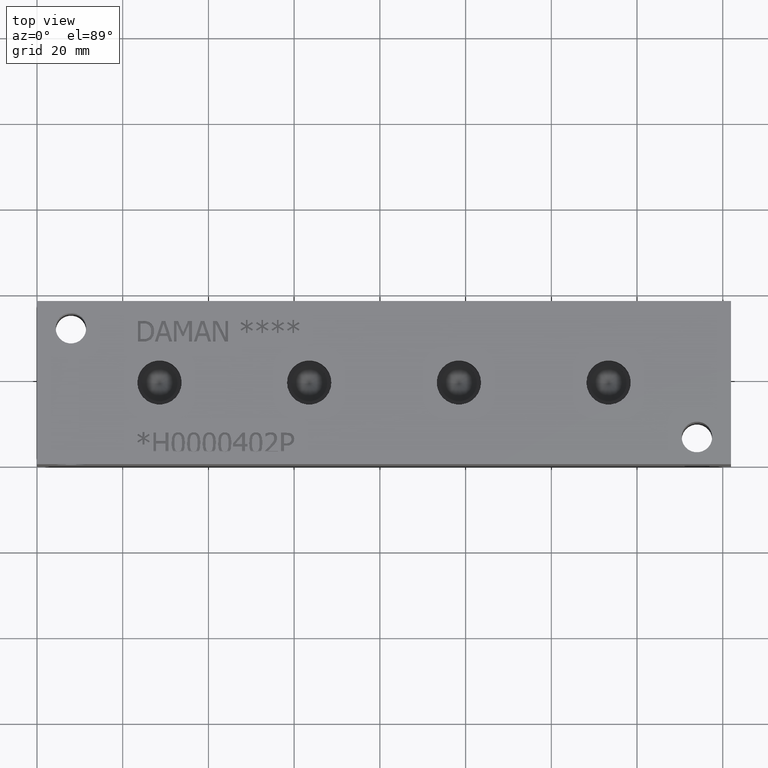
[diagram: clean part render]
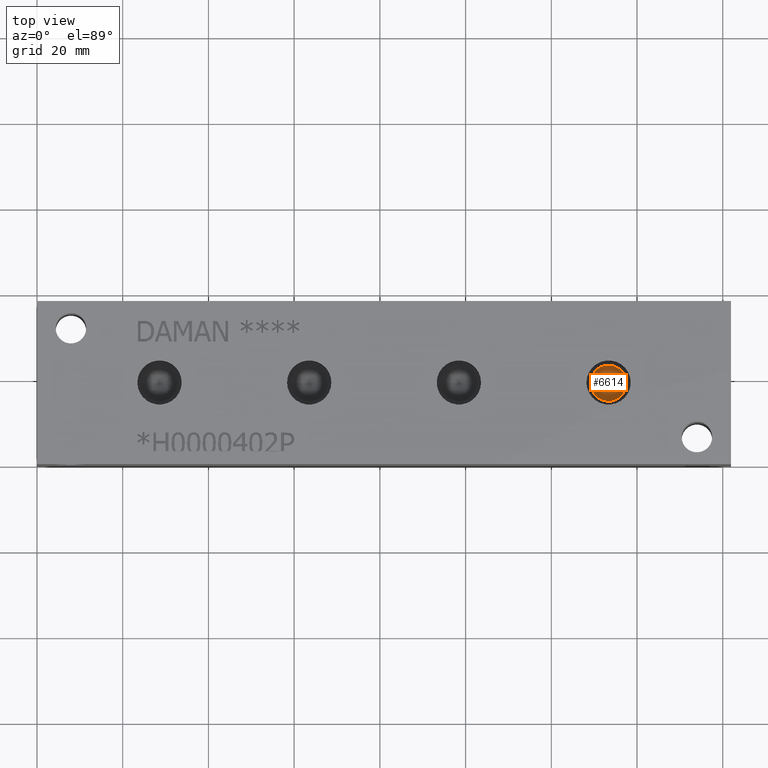
[diagram: same view with one face highlighted and labeled with its STEP entity id]
A machine part, top view. The second image highlights one B-rep face of the part: STEP entity #6614.
In plain terms, the highlighted conical surface has half-angle 60 deg.
Its self-contained STEP definition (entity closure, byte-faithful):
#17=CONICAL_SURFACE('',#6919,2.1082,1.0471975511966);
#83=CIRCLE('',#6920,4.2164);
#84=CIRCLE('',#6921,4.2164);
#690=FACE_OUTER_BOUND('',#1063,.T.);
#1063=EDGE_LOOP('',(#5833,#5834,#5835,#5836));
#1743=LINE('',#11150,#2411);
#2411=VECTOR('',#8159,2.1082);
#3184=VERTEX_POINT('',#11146);
#3185=VERTEX_POINT('',#11147);
#3186=VERTEX_POINT('',#11149);
#4078=EDGE_CURVE('',#3184,#3185,#83,.T.);
#4079=EDGE_CURVE('',#3185,#3186,#1743,.T.);
#4080=EDGE_CURVE('',#3185,#3184,#84,.T.);
#5833=ORIENTED_EDGE('',*,*,#4078,.T.);
#5834=ORIENTED_EDGE('',*,*,#4079,.T.);
#5835=ORIENTED_EDGE('',*,*,#4079,.F.);
#5836=ORIENTED_EDGE('',*,*,#4080,.T.);
#6614=ADVANCED_FACE('',(#690),#17,.F.);
#6919=AXIS2_PLACEMENT_3D('',#11145,#8155,#8156);
#6920=AXIS2_PLACEMENT_3D('',#11148,#8157,#8158);
#6921=AXIS2_PLACEMENT_3D('',#11151,#8160,#8161);
#8155=DIRECTION('center_axis',(0.,0.,1.));
#8156=DIRECTION('ref_axis',(1.,0.,0.));
#8157=DIRECTION('center_axis',(0.,0.,1.));
#8158=DIRECTION('ref_axis',(1.,0.,0.));
#8159=DIRECTION('',(0.866025403784439,1.06057523872491E-16,-0.5));
#8160=DIRECTION('center_axis',(0.,0.,1.));
#8161=DIRECTION('ref_axis',(1.,0.,0.));
#11145=CARTESIAN_POINT('Origin',(133.35,19.05,28.7654001624944));
#11146=CARTESIAN_POINT('',(137.5664,19.05,29.98257));
#11147=CARTESIAN_POINT('',(129.1336,19.05,29.98257));
#11148=CARTESIAN_POINT('Origin',(133.35,19.05,29.98257));
#11149=CARTESIAN_POINT('',(133.35,19.05,27.5482303249889));
#11150=CARTESIAN_POINT('',(131.2418,19.05,28.7654001624944));
#11151=CARTESIAN_POINT('Origin',(133.35,19.05,29.98257));